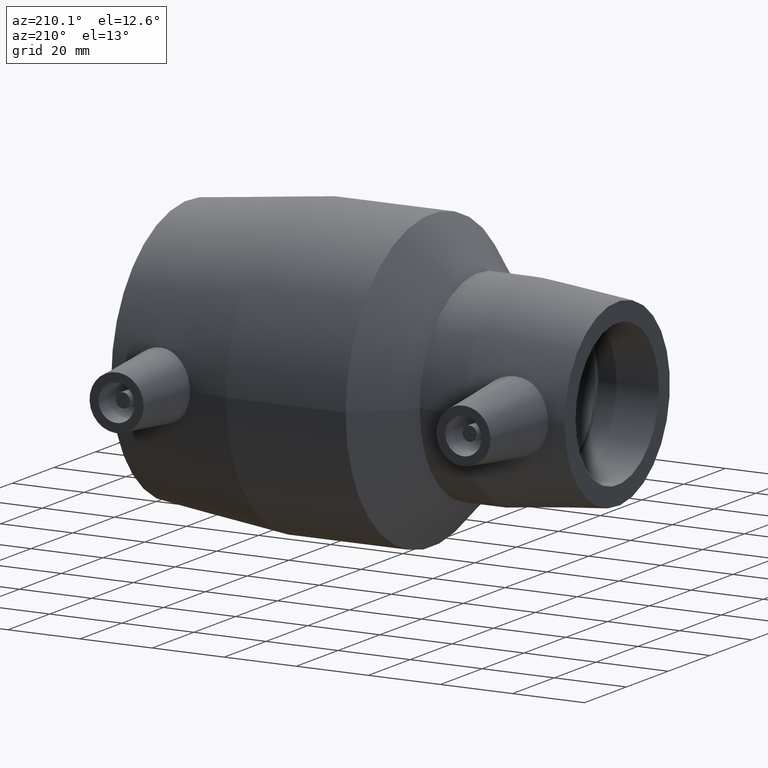
[diagram: clean part render]
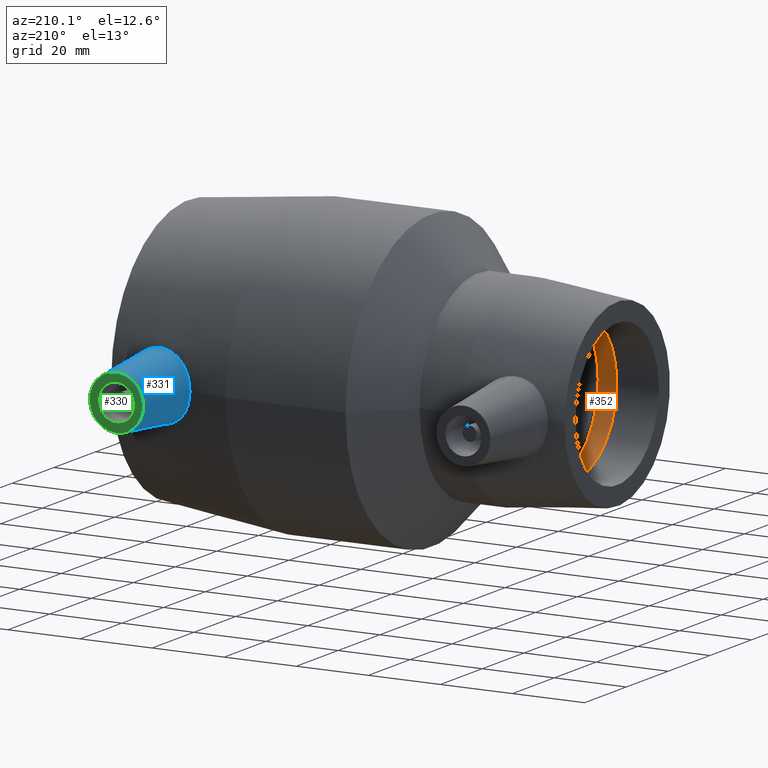
[diagram: same view with three faces highlighted in distinct colors, each labeled with its STEP entity id]
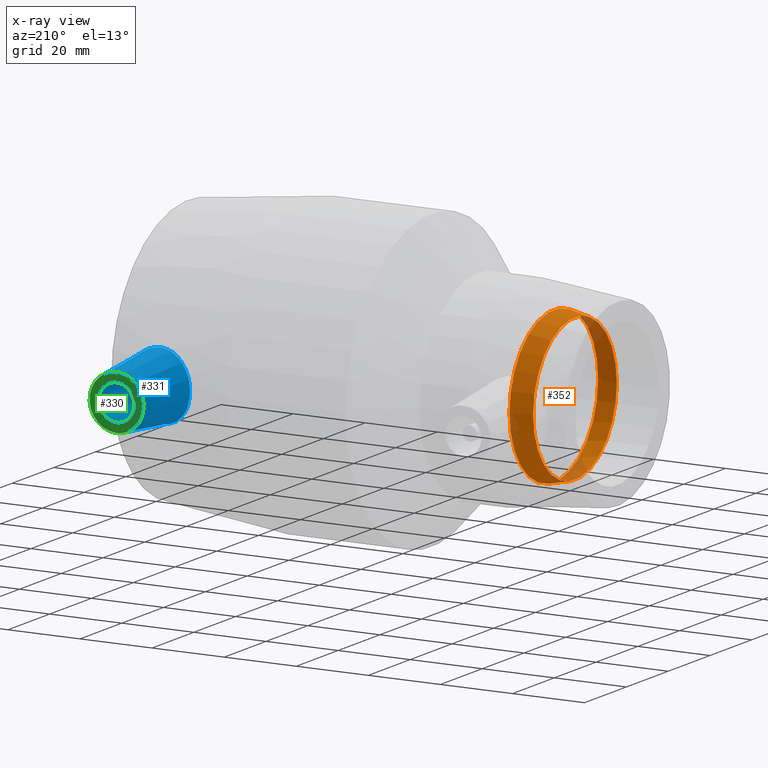
[diagram: x-ray of the same camera — body ghosted, the three highlighted faces saturated]
A machine part, auxiliary view with three faces highlighted in distinct colors.
The next image is the same camera in x-ray (body ghosted, the three faces saturated) — at least one of them is partly hidden behind the body in this view.
Their STEP definitions:

[orange] entity #352 — the highlighted conical surface has half-angle 12 deg.
#23=CONICAL_SURFACE('',#411,20.6234992475654,12.);
#51=FACE_BOUND('',#152,.T.);
#94=FACE_OUTER_BOUND('',#151,.T.);
#151=EDGE_LOOP('',(#304));
#152=EDGE_LOOP('',(#305));
#185=CIRCLE('',#410,21.2469984951308);
#186=CIRCLE('',#412,20.);
#216=VERTEX_POINT('',#688);
#217=VERTEX_POINT('',#691);
#247=EDGE_CURVE('',#216,#216,#185,.T.);
#248=EDGE_CURVE('',#217,#217,#186,.T.);
#304=ORIENTED_EDGE('',*,*,#248,.F.);
#305=ORIENTED_EDGE('',*,*,#247,.T.);
#352=ADVANCED_FACE('',(#94,#51),#23,.F.);
#410=AXIS2_PLACEMENT_3D('',#689,#524,#525);
#411=AXIS2_PLACEMENT_3D('',#690,#526,#527);
#412=AXIS2_PLACEMENT_3D('',#692,#528,#529);
#524=DIRECTION('center_axis',(1.,1.83697019872103E-16,0.));
#525=DIRECTION('ref_axis',(0.,0.,-1.));
#526=DIRECTION('center_axis',(1.,1.83697019872103E-16,0.));
#527=DIRECTION('ref_axis',(-1.68112701893672E-16,1.,0.));
#528=DIRECTION('center_axis',(1.,1.83697019872103E-16,0.));
#529=DIRECTION('ref_axis',(0.,0.,-1.));
#688=CARTESIAN_POINT('',(-41.9,21.2469984951308,0.));
#689=CARTESIAN_POINT('Origin',(-41.9,3.23306754974902E-15,0.));
#690=CARTESIAN_POINT('Origin',(-44.8333333333333,2.69422295812418E-15,0.));
#691=CARTESIAN_POINT('',(-47.7666666666667,20.,0.));
#692=CARTESIAN_POINT('Origin',(-47.7666666666667,2.15537836649934E-15,0.));

[blue] entity #331 — the highlighted conical surface has half-angle 5 deg.
#15=B_SPLINE_CURVE_WITH_KNOTS('',3,(#561,#562,#563,#564,#565,#566,#567,
#568,#569,#570,#571,#572,#573,#574,#575,#576,#577,#578,#579,#580,#581,#582,
#583,#584,#585,#586,#587,#588,#589,#590,#591,#592,#593,#594),
 .UNSPECIFIED.,.T.,.F.,(4,2,2,2,2,2,2,2,2,2,2,2,2,2,2,2,4),(0.,0.344344122566207,
0.688688245132414,1.03516444235368,1.38164063957495,1.72811683679622,2.07459303401749,
2.4189371565837,2.76328127914991,3.13062849513316,3.49797571111642,3.857611325417,
4.21724693971759,4.57688255401817,4.93651816831875,5.30386538430201,5.67121260028527),
 .UNSPECIFIED.);
#17=CONICAL_SURFACE('',#370,7.5,5.);
#29=FACE_BOUND('',#109,.T.);
#73=FACE_OUTER_BOUND('',#108,.T.);
#108=EDGE_LOOP('',(#261));
#109=EDGE_LOOP('',(#262));
#165=CIRCLE('',#369,7.5);
#194=VERTEX_POINT('',#557);
#195=VERTEX_POINT('',#560);
#225=EDGE_CURVE('',#194,#194,#165,.T.);
#226=EDGE_CURVE('',#195,#195,#15,.T.);
#261=ORIENTED_EDGE('',*,*,#225,.T.);
#262=ORIENTED_EDGE('',*,*,#226,.F.);
#331=ADVANCED_FACE('',(#73,#29),#17,.T.);
#369=AXIS2_PLACEMENT_3D('',#558,#442,#443);
#370=AXIS2_PLACEMENT_3D('',#559,#444,#445);
#442=DIRECTION('center_axis',(0.,-1.,0.));
#443=DIRECTION('ref_axis',(1.,0.,0.));
#444=DIRECTION('center_axis',(0.,-1.,0.));
#445=DIRECTION('ref_axis',(1.,0.,0.));
#557=CARTESIAN_POINT('',(37.72,59.,9.18485099360515E-16));
#558=CARTESIAN_POINT('Origin',(45.22,59.,0.));
#559=CARTESIAN_POINT('Origin',(45.22,59.,0.));
#560=CARTESIAN_POINT('',(45.589104814436,37.4092215909211,-9.38169029055444));
#561=CARTESIAN_POINT('Ctrl Pts',(45.589104814436,37.4092215909211,-9.38169029055444));
#562=CARTESIAN_POINT('Ctrl Pts',(46.7287582541534,37.2767002846761,-9.34845586868686));
#563=CARTESIAN_POINT('Ctrl Pts',(47.9431254974786,37.194509078744,-9.08699148278778));
#564=CARTESIAN_POINT('Ctrl Pts',(50.1690110046823,37.1493334326154,-8.09756112189558));
#565=CARTESIAN_POINT('Ctrl Pts',(51.180492909436,37.1829955260698,-7.36966930765445));
#566=CARTESIAN_POINT('Ctrl Pts',(52.7750082859773,37.2803716581146,-5.71116868463309));
#567=CARTESIAN_POINT('Ctrl Pts',(53.4649391651257,37.3503535786096,-4.66648492120333));
#568=CARTESIAN_POINT('Ctrl Pts',(54.3785078223631,37.4551896820506,-2.38842995182885));
#569=CARTESIAN_POINT('Ctrl Pts',(54.6021285950428,37.4871717181381,-1.15492065740423));
#570=CARTESIAN_POINT('Ctrl Pts',(54.6021285950428,37.4871717181381,1.15492065740423));
#571=CARTESIAN_POINT('Ctrl Pts',(54.3785078223631,37.4551896820506,2.38842995182884));
#572=CARTESIAN_POINT('Ctrl Pts',(53.4649391651257,37.3503535786096,4.66648492120333));
#573=CARTESIAN_POINT('Ctrl Pts',(52.7750082859773,37.2803716581146,5.71116868463309));
#574=CARTESIAN_POINT('Ctrl Pts',(51.180492909436,37.1829955260698,7.36966930765445));
#575=CARTESIAN_POINT('Ctrl Pts',(50.1690110046823,37.1493334326154,8.09756112189558));
#576=CARTESIAN_POINT('Ctrl Pts',(47.9431254974786,37.194509078744,9.08699148278778));
#577=CARTESIAN_POINT('Ctrl Pts',(46.7287582541534,37.2767002846761,9.34845586868686));
#578=CARTESIAN_POINT('Ctrl Pts',(44.3733195263179,37.55059566911,9.41714485924835));
#579=CARTESIAN_POINT('Ctrl Pts',(43.0843450526171,37.7672248336596,9.19906905247652));
#580=CARTESIAN_POINT('Ctrl Pts',(40.7215939932829,38.274878896641,8.25342393871714));
#581=CARTESIAN_POINT('Ctrl Pts',(39.6468508931193,38.5622320612865,7.52630228031444));
#582=CARTESIAN_POINT('Ctrl Pts',(37.9666275557364,39.0549459893803,5.85108600084694));
#583=CARTESIAN_POINT('Ctrl Pts',(37.2412096689238,39.2941581875701,4.79664940802954));
#584=CARTESIAN_POINT('Ctrl Pts',(36.2739787092503,39.6247851042625,2.47079972789851));
#585=CARTESIAN_POINT('Ctrl Pts',(36.0326358037098,39.7133389825962,1.19878538100194));
#586=CARTESIAN_POINT('Ctrl Pts',(36.0326358037098,39.7133389825962,-1.19878538100194));
#587=CARTESIAN_POINT('Ctrl Pts',(36.2739787092503,39.6247851042625,-2.47079972789851));
#588=CARTESIAN_POINT('Ctrl Pts',(37.2412096689238,39.2941581875701,-4.79664940802954));
#589=CARTESIAN_POINT('Ctrl Pts',(37.9666275557364,39.0549459893803,-5.85108600084694));
#590=CARTESIAN_POINT('Ctrl Pts',(39.6468508931193,38.5622320612865,-7.52630228031444));
#591=CARTESIAN_POINT('Ctrl Pts',(40.7215939932828,38.274878896641,-8.25342393871714));
#592=CARTESIAN_POINT('Ctrl Pts',(43.0843450526171,37.7672248336596,-9.19906905247652));
#593=CARTESIAN_POINT('Ctrl Pts',(44.3733195263179,37.55059566911,-9.41714485924835));
#594=CARTESIAN_POINT('Ctrl Pts',(45.589104814436,37.4092215909211,-9.38169029055444));

[green] entity #330 — the highlighted planar face has unit normal (0, 1, 0).
#28=FACE_BOUND('',#107,.T.);
#72=FACE_OUTER_BOUND('',#106,.T.);
#106=EDGE_LOOP('',(#259));
#107=EDGE_LOOP('',(#260));
#164=CIRCLE('',#366,5.);
#165=CIRCLE('',#369,7.5);
#193=VERTEX_POINT('',#553);
#194=VERTEX_POINT('',#557);
#224=EDGE_CURVE('',#193,#193,#164,.T.);
#225=EDGE_CURVE('',#194,#194,#165,.T.);
#259=ORIENTED_EDGE('',*,*,#225,.F.);
#260=ORIENTED_EDGE('',*,*,#224,.T.);
#316=PLANE('',#368);
#330=ADVANCED_FACE('',(#72,#28),#316,.T.);
#366=AXIS2_PLACEMENT_3D('',#554,#436,#437);
#368=AXIS2_PLACEMENT_3D('',#556,#440,#441);
#369=AXIS2_PLACEMENT_3D('',#558,#442,#443);
#436=DIRECTION('center_axis',(0.,-1.,0.));
#437=DIRECTION('ref_axis',(1.,0.,0.));
#440=DIRECTION('center_axis',(0.,1.,0.));
#441=DIRECTION('ref_axis',(0.,0.,1.));
#442=DIRECTION('center_axis',(0.,-1.,0.));
#443=DIRECTION('ref_axis',(1.,0.,0.));
#553=CARTESIAN_POINT('',(40.22,59.,6.12323399573677E-16));
#554=CARTESIAN_POINT('Origin',(45.22,59.,0.));
#556=CARTESIAN_POINT('Origin',(45.22,59.,1.2335811384724E-16));
#557=CARTESIAN_POINT('',(37.72,59.,9.18485099360515E-16));
#558=CARTESIAN_POINT('Origin',(45.22,59.,0.));